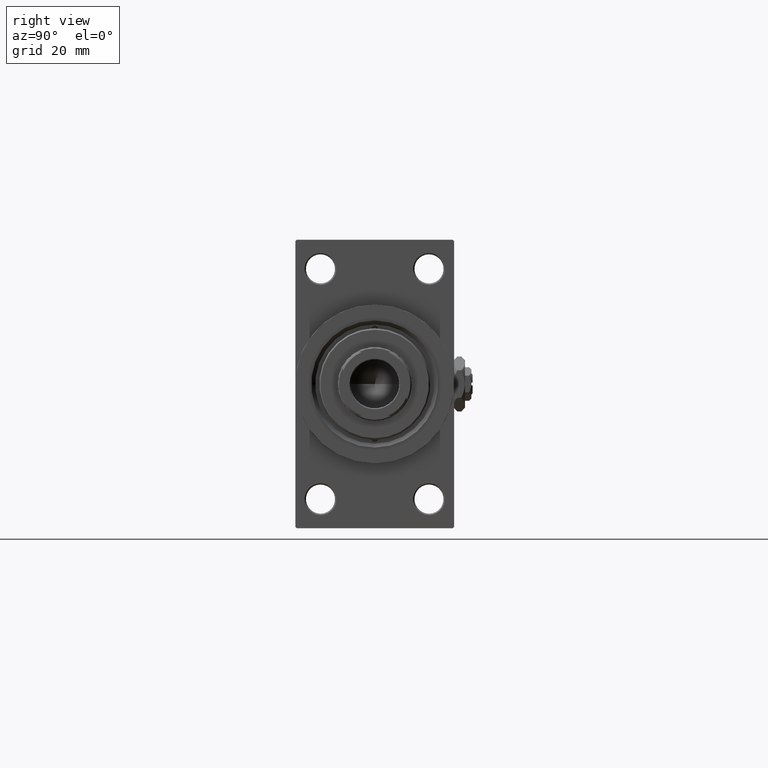
[diagram: clean part render]
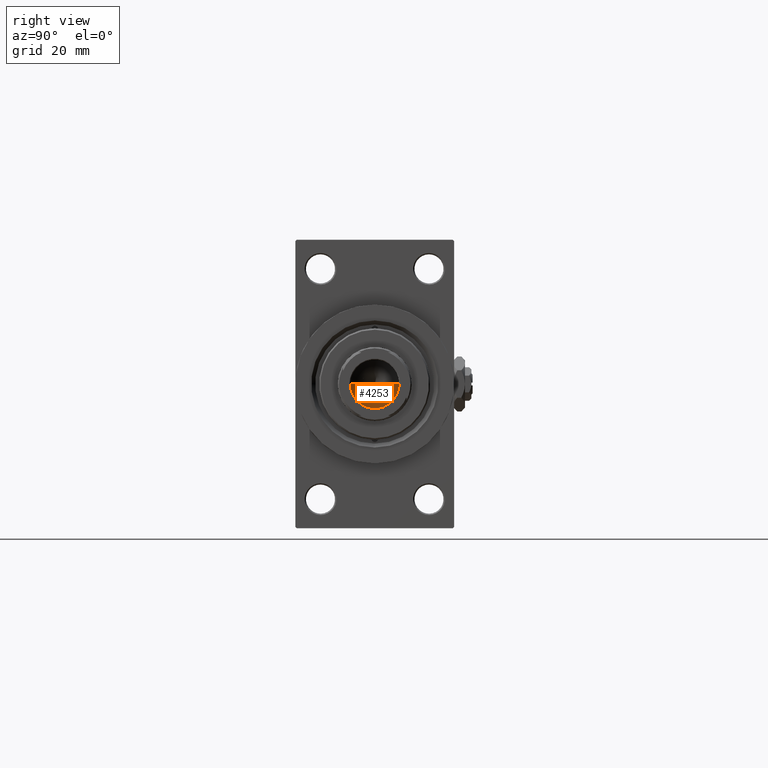
[diagram: same view with one face highlighted and labeled with its STEP entity id]
A machine part, right view. The second image highlights one B-rep face of the part: STEP entity #4253.
In plain terms, the highlighted conical surface has half-angle 59 deg.
Its self-contained STEP definition (entity closure, byte-faithful):
#859 = AXIS2_PLACEMENT_3D ( 'NONE', #43188, #23160, #35170 ) ;
#4253 = ADVANCED_FACE ( 'NONE', ( #27897 ), #31419, .F. ) ;
#5878 = CARTESIAN_POINT ( 'NONE',  ( -9.769621978240258809E-15, 0.000000000000000000, 155.4420392739950785 ) ) ;
#6008 = AXIS2_PLACEMENT_3D ( 'NONE', #20618, #43187, #39915 ) ;
#6837 = VERTEX_POINT ( 'NONE', #19610 ) ;
#6921 = CARTESIAN_POINT ( 'NONE',  ( 9.249999999999992895, 0.000000000000000000, 161.0000000000000000 ) ) ;
#10666 = LINE ( 'NONE', #6921, #35947 ) ;
#11649 = ORIENTED_EDGE ( 'NONE', *, *, #42763, .T. ) ;
#14883 = EDGE_CURVE ( 'NONE', #47581, #6837, #10666, .T. ) ;
#17077 = VECTOR ( 'NONE', #44727, 1000.000000000000000 ) ;
#17957 = DIRECTION ( 'NONE',  ( 0.8571673007021122226, 0.000000000000000000, 0.5150380749100542666 ) ) ;
#19610 = CARTESIAN_POINT ( 'NONE',  ( 9.249999999999992895, 0.000000000000000000, 161.0000000000000000 ) ) ;
#20618 = CARTESIAN_POINT ( 'NONE',  ( 0.000000000000000000, 0.000000000000000000, 161.0000000000000000 ) ) ;
#21426 = CARTESIAN_POINT ( 'NONE',  ( -9.249999999999992895, 1.132798289211300712E-15, 161.0000000000000000 ) ) ;
#23160 = DIRECTION ( 'NONE',  ( -0.000000000000000000, -0.000000000000000000, 1.000000000000000000 ) ) ;
#24070 = ORIENTED_EDGE ( 'NONE', *, *, #25539, .F. ) ;
#25539 = EDGE_CURVE ( 'NONE', #47581, #44461, #26174, .T. ) ;
#26174 = LINE ( 'NONE', #21426, #17077 ) ;
#27897 = FACE_OUTER_BOUND ( 'NONE', #43577, .T. ) ;
#30926 = CARTESIAN_POINT ( 'NONE',  ( -9.249999999999992895, 1.132798289211300712E-15, 161.0000000000000000 ) ) ;
#31419 = CONICAL_SURFACE ( 'NONE', #859, 9.249999999999992895, 1.029744258676654312 ) ;
#35170 = DIRECTION ( 'NONE',  ( 1.000000000000000000, 0.000000000000000000, 0.000000000000000000 ) ) ;
#35947 = VECTOR ( 'NONE', #17957, 1000.000000000000000 ) ;
#36092 = ORIENTED_EDGE ( 'NONE', *, *, #14883, .T. ) ;
#39915 = DIRECTION ( 'NONE',  ( 1.000000000000000000, 0.000000000000000000, 0.000000000000000000 ) ) ;
#41273 = CIRCLE ( 'NONE', #6008, 9.249999999999992895 ) ;
#42763 = EDGE_CURVE ( 'NONE', #6837, #44461, #41273, .T. ) ;
#43187 = DIRECTION ( 'NONE',  ( -0.000000000000000000, -0.000000000000000000, 1.000000000000000000 ) ) ;
#43188 = CARTESIAN_POINT ( 'NONE',  ( 0.000000000000000000, 0.000000000000000000, 161.0000000000000000 ) ) ;
#43577 = EDGE_LOOP ( 'NONE', ( #24070, #36092, #11649 ) ) ;
#44461 = VERTEX_POINT ( 'NONE', #30926 ) ;
#44727 = DIRECTION ( 'NONE',  ( -0.8571673007021122226, 1.049727191138618572E-16, 0.5150380749100542666 ) ) ;
#47581 = VERTEX_POINT ( 'NONE', #5878 ) ;